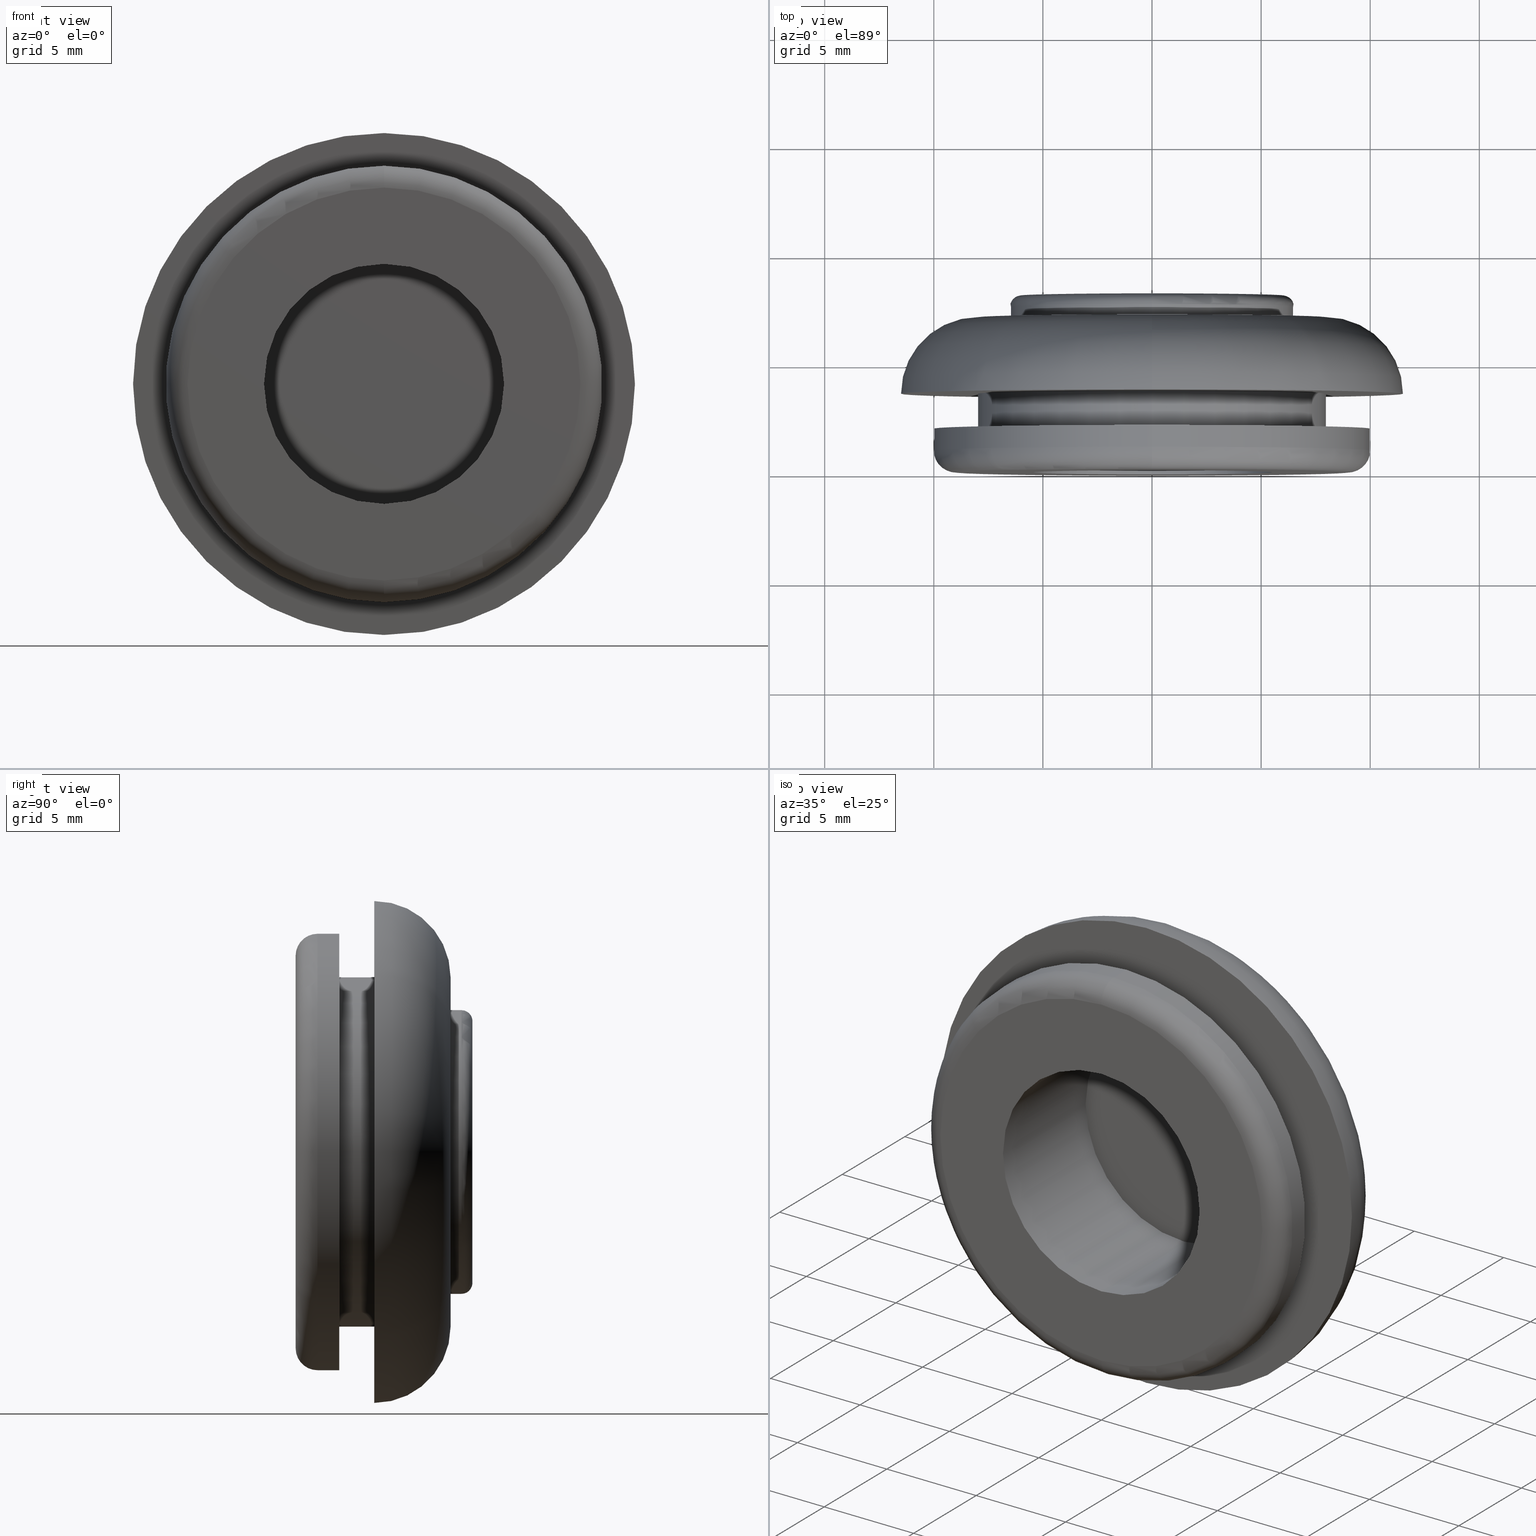
[diagram: canonical four-view strip — front | top / right | iso, engineering-drawing reading convention]
A machine part, canonical four-view strip (front | top / right | iso — engineering-drawing reading convention). The complete STEP part file that produces these views, byte-faithful:
ISO-10303-21;
HEADER;
FILE_DESCRIPTION (( 'STEP AP214' ),
    '1' );
FILE_NAME ('TM_MG_1_F.STEP',
    '2017-02-14T02:38:15',
    ( '' ),
    ( '' ),
    'SwSTEP 2.0',
    'SolidWorks 2015',
    '' );
FILE_SCHEMA (( 'AUTOMOTIVE_DESIGN' ));
ENDSEC;

DATA;
#1 = VERTEX_POINT ( 'NONE', #2 ) ;
#2 = CARTESIAN_POINT ( 'NONE',  ( 0.0000000000000000000, 1.000000000000000000, -10.00000000000000000 ) ) ;
#3 = DIRECTION ( 'NONE',  ( 0.0000000000000000000, -1.000000000000000000, 0.0000000000000000000 ) ) ;
#4 = CIRCLE ( 'NONE', #153, 6.500000000000000000 ) ;
#5 = ORIENTED_EDGE ( 'NONE', *, *, #287, .T. ) ;
#6 = AXIS2_PLACEMENT_3D ( 'NONE', #288, #584, #237 ) ;
#7 = PRODUCT_DEFINITION_CONTEXT ( 'detailed design', #92, 'design' ) ;
#8 = TOROIDAL_SURFACE ( 'NONE', #317, 9.000000000000000000, 1.000000000000000000 ) ;
#9 = CIRCLE ( 'NONE', #593, 5.500000000000000000 ) ;
#10 = ORIENTED_EDGE ( 'NONE', *, *, #227, .F. ) ;
#11 = AXIS2_PLACEMENT_3D ( 'NONE', #476, #622, #591 ) ;
#12 = EDGE_CURVE ( 'NONE', #91, #156, #4, .T. ) ;
#13 = VERTEX_POINT ( 'NONE', #604 ) ;
#14 = ORIENTED_EDGE ( 'NONE', *, *, #86, .F. ) ;
#15 = FACE_BOUND ( 'NONE', #56, .T. ) ;
#16 = DIRECTION ( 'NONE',  ( 0.0000000000000000000, 0.0000000000000000000, -1.000000000000000000 ) ) ;
#17 = AXIS2_PLACEMENT_3D ( 'NONE', #545, #392, #440 ) ;
#18 = EDGE_CURVE ( 'NONE', #155, #552, #526, .T. ) ;
#19 = SURFACE_SIDE_STYLE ('',( #457 ) ) ;
#20 = CIRCLE ( 'NONE', #218, 6.500000000000000000 ) ;
#21 = DIRECTION ( 'NONE',  ( 0.0000000000000000000, -1.000000000000000000, 0.0000000000000000000 ) ) ;
#22 = VECTOR ( 'NONE', #595, 1000.000000000000000 ) ;
#23 = CARTESIAN_POINT ( 'NONE',  ( 0.0000000000000000000, 0.0000000000000000000, -8.000000000000000000 ) ) ;
#24 = CYLINDRICAL_SURFACE ( 'NONE', #495, 10.00000000000000000 ) ;
#25 = DIRECTION ( 'NONE',  ( 0.0000000000000000000, 0.0000000000000000000, -1.000000000000000000 ) ) ;
#26 = CARTESIAN_POINT ( 'NONE',  ( 1.408343819019456400E-015, 3.600000000000000100, 11.50000000000000000 ) ) ;
#27 = PRODUCT_CONTEXT ( 'NONE', #496, 'mechanical' ) ;
#28 = DIRECTION ( 'NONE',  ( 0.0000000000000000000, 0.0000000000000000000, 1.000000000000000000 ) ) ;
#29 = CARTESIAN_POINT ( 'NONE',  ( 0.0000000000000000000, 6.599999999999999600, -3.061515884555945100E-016 ) ) ;
#30 =( NAMED_UNIT ( * ) PLANE_ANGLE_UNIT ( ) SI_UNIT ( $, .RADIAN. ) );
#31 = DIRECTION ( 'NONE',  ( 0.0000000000000000000, -1.000000000000000000, 0.0000000000000000000 ) ) ;
#32 = DIRECTION ( 'NONE',  ( 0.0000000000000000000, -1.000000000000000000, 0.0000000000000000000 ) ) ;
#33 = AXIS2_PLACEMENT_3D ( 'NONE', #308, #418, #460 ) ;
#34 =( LENGTH_UNIT ( ) NAMED_UNIT ( * ) SI_UNIT ( .MILLI., .METRE. ) );
#35 =( NAMED_UNIT ( * ) SI_UNIT ( $, .STERADIAN. ) SOLID_ANGLE_UNIT ( ) );
#36 = CARTESIAN_POINT ( 'NONE',  ( 0.0000000000000000000, 6.599999999999999600, -3.061515884555945100E-016 ) ) ;
#37 = CARTESIAN_POINT ( 'NONE',  ( 0.0000000000000000000, 7.100000000000000500, -3.061515884555945100E-016 ) ) ;
#38 = DIRECTION ( 'NONE',  ( -1.224646799147353500E-016, 0.0000000000000000000, -1.000000000000000000 ) ) ;
#39 = CARTESIAN_POINT ( 'NONE',  ( 0.0000000000000000000, 3.600000000000000100, -8.000000000000000000 ) ) ;
#40 = CYLINDRICAL_SURFACE ( 'NONE', #75, 5.500000000000000000 ) ;
#41 = EDGE_LOOP ( 'NONE', ( #350, #119, #254, #433 ) ) ;
#42 = CIRCLE ( 'NONE', #404, 5.500000000000000000 ) ;
#43 = AXIS2_PLACEMENT_3D ( 'NONE', #462, #544, #57 ) ;
#44 = ORIENTED_EDGE ( 'NONE', *, *, #265, .F. ) ;
#45 = VERTEX_POINT ( 'NONE', #150 ) ;
#46 = CARTESIAN_POINT ( 'NONE',  ( 0.0000000000000000000, 0.0000000000000000000, -6.500000000000000000 ) ) ;
#47 = AXIS2_PLACEMENT_3D ( 'NONE', #244, #594, #298 ) ;
#48 = ADVANCED_FACE ( 'NONE', ( #315 ), #344, .T. ) ;
#49 = EDGE_CURVE ( 'NONE', #497, #312, #546, .T. ) ;
#50 = PLANE ( 'NONE',  #246 ) ;
#51 = CARTESIAN_POINT ( 'NONE',  ( 1.102182119232617700E-015, 1.000000000000000000, 9.000000000000000000 ) ) ;
#52 = ORIENTED_EDGE ( 'NONE', *, *, #18, .T. ) ;
#53 = DIRECTION ( 'NONE',  ( 0.0000000000000000000, 0.0000000000000000000, -1.000000000000000000 ) ) ;
#54 = AXIS2_PLACEMENT_3D ( 'NONE', #129, #480, #71 ) ;
#55 = EDGE_CURVE ( 'NONE', #611, #365, #20, .T. ) ;
#56 = EDGE_LOOP ( 'NONE', ( #207, #652 ) ) ;
#57 = DIRECTION ( 'NONE',  ( 0.0000000000000000000, 0.0000000000000000000, -1.000000000000000000 ) ) ;
#58 = ORIENTED_EDGE ( 'NONE', *, *, #597, .F. ) ;
#59 = TOROIDAL_SURFACE ( 'NONE', #11, 8.000000000000000000, 3.500000000000000000 ) ;
#60 = ORIENTED_EDGE ( 'NONE', *, *, #502, .T. ) ;
#61 = FACE_OUTER_BOUND ( 'NONE', #529, .T. ) ;
#62 = CARTESIAN_POINT ( 'NONE',  ( 0.0000000000000000000, -1.010300241903460100E-015, -3.061515884555945100E-016 ) ) ;
#63 = VERTEX_POINT ( 'NONE', #631 ) ;
#64 = LINE ( 'NONE', #333, #185 ) ;
#65 = DIRECTION ( 'NONE',  ( 0.0000000000000000000, 0.0000000000000000000, -1.000000000000000000 ) ) ;
#66 = ORIENTED_EDGE ( 'NONE', *, *, #86, .T. ) ;
#67 = AXIS2_PLACEMENT_3D ( 'NONE', #231, #130, #171 ) ;
#68 = EDGE_CURVE ( 'NONE', #166, #156, #274, .T. ) ;
#69 =( GEOMETRIC_REPRESENTATION_CONTEXT ( 3 ) GLOBAL_UNCERTAINTY_ASSIGNED_CONTEXT ( ( #519 ) ) GLOBAL_UNIT_ASSIGNED_CONTEXT ( ( #335, #199, #35 ) ) REPRESENTATION_CONTEXT ( 'NONE', 'WORKASPACE' ) );
#70 = CARTESIAN_POINT ( 'NONE',  ( 0.0000000000000000000, 3.600000000000000100, -3.061515884555945100E-016 ) ) ;
#71 = DIRECTION ( 'NONE',  ( 0.0000000000000000000, 0.0000000000000000000, -1.000000000000000000 ) ) ;
#72 = FILL_AREA_STYLE ('',( #330 ) ) ;
#73 = DIRECTION ( 'NONE',  ( 0.0000000000000000000, -1.000000000000000000, 0.0000000000000000000 ) ) ;
#74 = EDGE_LOOP ( 'NONE', ( #58, #186, #253, #474 ) ) ;
#75 = AXIS2_PLACEMENT_3D ( 'NONE', #486, #492, #294 ) ;
#76 = PRESENTATION_STYLE_ASSIGNMENT (( #562 ) ) ;
#77 = LINE ( 'NONE', #547, #194 ) ;
#78 = DIRECTION ( 'NONE',  ( -1.000000000000000000, -0.0000000000000000000, -0.0000000000000000000 ) ) ;
#79 = EDGE_CURVE ( 'NONE', #45, #448, #154, .T. ) ;
#80 = CARTESIAN_POINT ( 'NONE',  ( 0.0000000000000000000, 0.0000000000000000000, -3.061515884555945100E-016 ) ) ;
#81 = DIRECTION ( 'NONE',  ( 0.0000000000000000000, 0.0000000000000000000, -1.000000000000000000 ) ) ;
#82 = TOROIDAL_SURFACE ( 'NONE', #428, 8.000000000000000000, 3.500000000000000000 ) ;
#83 = CARTESIAN_POINT ( 'NONE',  ( 0.0000000000000000000, 7.599999999999999600, -6.500000000000000900 ) ) ;
#84 = DIRECTION ( 'NONE',  ( 0.0000000000000000000, 0.0000000000000000000, -1.000000000000000000 ) ) ;
#85 = AXIS2_PLACEMENT_3D ( 'NONE', #80, #31, #16 ) ;
#86 = EDGE_CURVE ( 'NONE', #88, #63, #425, .T. ) ;
#87 = LINE ( 'NONE', #389, #475 ) ;
#88 = VERTEX_POINT ( 'NONE', #256 ) ;
#89 = CARTESIAN_POINT ( 'NONE',  ( 9.797174393178825700E-016, 3.600000000000000100, 8.000000000000000000 ) ) ;
#90 = EDGE_LOOP ( 'NONE', ( #558, #128 ) ) ;
#91 = VERTEX_POINT ( 'NONE', #617 ) ;
#92 = APPLICATION_CONTEXT ( 'automotive_design' ) ;
#93 = DIRECTION ( 'NONE',  ( 0.0000000000000000000, -1.000000000000000000, 0.0000000000000000000 ) ) ;
#94 = PRODUCT_DEFINITION_CONTEXT ( 'detailed design', #233, 'design' ) ;
#95 = CIRCLE ( 'NONE', #307, 10.00000000000000000 ) ;
#96 = ORIENTED_EDGE ( 'NONE', *, *, #489, .T. ) ;
#97 = ADVANCED_FACE ( 'NONE', ( #555 ), #82, .T. ) ;
#98 = DIRECTION ( 'NONE',  ( 0.0000000000000000000, -1.000000000000000000, 0.0000000000000000000 ) ) ;
#99 = ADVANCED_BREP_SHAPE_REPRESENTATION ( '', ( #336, #422 ), #360 ) ;
#100 = DIRECTION ( 'NONE',  ( 0.0000000000000000000, -1.000000000000000000, 0.0000000000000000000 ) ) ;
#101 = ADVANCED_FACE ( 'NONE', ( #565 ), #24, .T. ) ;
#102 = CARTESIAN_POINT ( 'NONE',  ( 0.0000000000000000000, 7.100000000000000500, 8.881784197001250400E-016 ) ) ;
#103 = ORIENTED_EDGE ( 'NONE', *, *, #624, .T. ) ;
#104 = DIRECTION ( 'NONE',  ( 0.0000000000000000000, -1.000000000000000000, 0.0000000000000000000 ) ) ;
#105 = VECTOR ( 'NONE', #525, 1000.000000000000000 ) ;
#106 = ORIENTED_EDGE ( 'NONE', *, *, #319, .T. ) ;
#107 = CARTESIAN_POINT ( 'NONE',  ( 0.0000000000000000000, 7.599999999999999600, -3.061515884555945100E-016 ) ) ;
#108 = VERTEX_POINT ( 'NONE', #560 ) ;
#109 = AXIS2_PLACEMENT_3D ( 'NONE', #222, #78, #390 ) ;
#110 = AXIS2_PLACEMENT_3D ( 'NONE', #487, #554, #441 ) ;
#111 = ORIENTED_EDGE ( 'NONE', *, *, #543, .T. ) ;
#112 = CIRCLE ( 'NONE', #162, 11.50000000000000000 ) ;
#113 = ORIENTED_EDGE ( 'NONE', *, *, #634, .F. ) ;
#114 = AXIS2_PLACEMENT_3D ( 'NONE', #408, #93, #453 ) ;
#115 = EDGE_CURVE ( 'NONE', #312, #649, #158, .T. ) ;
#116 = EDGE_LOOP ( 'NONE', ( #629, #60 ) ) ;
#117 = PRODUCT ( 'TM_MG_1_F', 'TM_MG_1_F', '', ( #27 ) ) ;
#118 = CIRCLE ( 'NONE', #321, 8.000000000000000000 ) ;
#119 = ORIENTED_EDGE ( 'NONE', *, *, #505, .T. ) ;
#120 = DIRECTION ( 'NONE',  ( 0.0000000000000000000, -1.000000000000000000, 0.0000000000000000000 ) ) ;
#121 = AXIS2_PLACEMENT_3D ( 'NONE', #531, #432, #125 ) ;
#122 = EDGE_CURVE ( 'NONE', #570, #166, #42, .T. ) ;
#123 = DIRECTION ( 'NONE',  ( 0.0000000000000000000, -1.000000000000000000, 0.0000000000000000000 ) ) ;
#124 = DIRECTION ( 'NONE',  ( 0.0000000000000000000, -1.000000000000000000, 0.0000000000000000000 ) ) ;
#125 = DIRECTION ( 'NONE',  ( 0.0000000000000000000, 0.0000000000000000000, -1.000000000000000000 ) ) ;
#126 = CIRCLE ( 'NONE', #6, 5.500000000000000000 ) ;
#127 = EDGE_CURVE ( 'NONE', #1, #272, #297, .T. ) ;
#128 = ORIENTED_EDGE ( 'NONE', *, *, #573, .F. ) ;
#129 = CARTESIAN_POINT ( 'NONE',  ( 0.0000000000000000000, -1.665334536937735000E-015, -3.061515884555945100E-016 ) ) ;
#130 = DIRECTION ( 'NONE',  ( -1.000000000000000000, -0.0000000000000000000, -0.0000000000000000000 ) ) ;
#131 = DIRECTION ( 'NONE',  ( 0.0000000000000000000, 0.0000000000000000000, -1.000000000000000000 ) ) ;
#132 = DIRECTION ( 'NONE',  ( 0.0000000000000000000, 1.000000000000000000, 0.0000000000000000000 ) ) ;
#133 = ORIENTED_EDGE ( 'NONE', *, *, #468, .T. ) ;
#134 = SHAPE_DEFINITION_REPRESENTATION ( #144, #386 ) ;
#135 = DIRECTION ( 'NONE',  ( 0.0000000000000000000, 0.0000000000000000000, 1.000000000000000000 ) ) ;
#136 = CIRCLE ( 'NONE', #54, 9.000000000000000000 ) ;
#137 = ADVANCED_FACE ( 'NONE', ( #420 ), #146, .F. ) ;
#138 = DIRECTION ( 'NONE',  ( 0.0000000000000000000, 0.0000000000000000000, -1.000000000000000000 ) ) ;
#139 = DIRECTION ( 'NONE',  ( 0.0000000000000000000, 0.0000000000000000000, -1.000000000000000000 ) ) ;
#140 = AXIS2_PLACEMENT_3D ( 'NONE', #399, #504, #81 ) ;
#141 = LINE ( 'NONE', #643, #431 ) ;
#142 = PRODUCT_DEFINITION ( 'UNKNOWN', '', #314, #94 ) ;
#143 = DIRECTION ( 'NONE',  ( 0.0000000000000000000, -1.000000000000000000, 0.0000000000000000000 ) ) ;
#144 = PRODUCT_DEFINITION_SHAPE ( 'NONE', 'NONE',  #142 ) ;
#145 = AXIS2_PLACEMENT_3D ( 'NONE', #309, #3, #245 ) ;
#146 = PLANE ( 'NONE',  #615 ) ;
#147 = EDGE_CURVE ( 'NONE', #382, #272, #141, .T. ) ;
#148 = ADVANCED_FACE ( 'NONE', ( #551 ), #264, .T. ) ;
#149 = CARTESIAN_POINT ( 'NONE',  ( 0.0000000000000000000, 7.599999999999999600, -6.000000000000000000 ) ) ;
#150 = CARTESIAN_POINT ( 'NONE',  ( 1.194030629168669500E-015, 7.100000000000000500, 8.000000000000000000 ) ) ;
#151 =( NAMED_UNIT ( * ) PLANE_ANGLE_UNIT ( ) SI_UNIT ( $, .RADIAN. ) );
#152 = CARTESIAN_POINT ( 'NONE',  ( 0.0000000000000000000, 2.000000000000000000, -10.00000000000000000 ) ) ;
#153 = AXIS2_PLACEMENT_3D ( 'NONE', #107, #259, #509 ) ;
#154 = CIRCLE ( 'NONE', #322, 8.000000000000000000 ) ;
#155 = VERTEX_POINT ( 'NONE', #490 ) ;
#156 = VERTEX_POINT ( 'NONE', #83 ) ;
#157 = CYLINDRICAL_SURFACE ( 'NONE', #213, 5.500000000000000000 ) ;
#158 = CIRCLE ( 'NONE', #465, 8.000000000000000000 ) ;
#159 = EDGE_LOOP ( 'NONE', ( #513, #539, #219, #10 ) ) ;
#160 = EDGE_CURVE ( 'NONE', #166, #570, #126, .T. ) ;
#161 = ORIENTED_EDGE ( 'NONE', *, *, #502, .F. ) ;
#162 = AXIS2_PLACEMENT_3D ( 'NONE', #70, #385, #25 ) ;
#163 = SHAPE_REPRESENTATION ( 'TM_MG_1_F', ( #110, #33 ), #69 ) ;
#164 = DIRECTION ( 'NONE',  ( 0.0000000000000000000, -1.000000000000000000, 0.0000000000000000000 ) ) ;
#165 = DIRECTION ( 'NONE',  ( 0.0000000000000000000, -1.000000000000000000, 0.0000000000000000000 ) ) ;
#166 = VERTEX_POINT ( 'NONE', #181 ) ;
#167 = DIRECTION ( 'NONE',  ( 0.0000000000000000000, 0.0000000000000000000, -1.000000000000000000 ) ) ;
#168 = CIRCLE ( 'NONE', #114, 8.000000000000000000 ) ;
#169 = CARTESIAN_POINT ( 'NONE',  ( 0.0000000000000000000, 7.599999999999999600, -3.061515884555945100E-016 ) ) ;
#170 = EDGE_LOOP ( 'NONE', ( #295, #224, #201, #483 ) ) ;
#171 = DIRECTION ( 'NONE',  ( 0.0000000000000000000, 0.0000000000000000000, 1.000000000000000000 ) ) ;
#172 = DIRECTION ( 'NONE',  ( 0.0000000000000000000, 0.0000000000000000000, -1.000000000000000000 ) ) ;
#173 = DIRECTION ( 'NONE',  ( 0.0000000000000000000, -1.000000000000000000, 0.0000000000000000000 ) ) ;
#174 = CARTESIAN_POINT ( 'NONE',  ( 7.960204194457795500E-016, 7.100000000000000500, 6.500000000000000000 ) ) ;
#175 = SURFACE_SIDE_STYLE ('',( #211 ) ) ;
#176 = APPLICATION_PROTOCOL_DEFINITION ( 'draft international standard', 'automotive_design', 1998, #187 ) ;
#177 = DIRECTION ( 'NONE',  ( 0.0000000000000000000, -1.000000000000000000, 0.0000000000000000000 ) ) ;
#178 = EDGE_CURVE ( 'NONE', #63, #88, #9, .T. ) ;
#179 = DIRECTION ( 'NONE',  ( -1.224646799147353500E-016, 0.0000000000000000000, -1.000000000000000000 ) ) ;
#180 = ADVANCED_FACE ( 'NONE', ( #278 ), #387, .T. ) ;
#181 = CARTESIAN_POINT ( 'NONE',  ( 0.0000000000000000000, 7.599999999999999600, -5.500000000000000000 ) ) ;
#182 = DIRECTION ( 'NONE',  ( 0.0000000000000000000, 0.0000000000000000000, 1.000000000000000000 ) ) ;
#183 = AXIS2_PLACEMENT_3D ( 'NONE', #169, #528, #221 ) ;
#184 = AXIS2_PLACEMENT_3D ( 'NONE', #36, #445, #303 ) ;
#185 = VECTOR ( 'NONE', #438, 1000.000000000000000 ) ;
#186 = ORIENTED_EDGE ( 'NONE', *, *, #18, .F. ) ;
#187 = APPLICATION_CONTEXT ( 'automotive_design' ) ;
#188 = EDGE_LOOP ( 'NONE', ( #103, #451, #401, #316 ) ) ;
#189 = CARTESIAN_POINT ( 'NONE',  ( 0.0000000000000000000, 7.100000000000000500, 6.500000000000000000 ) ) ;
#190 = EDGE_CURVE ( 'NONE', #448, #108, #516, .T. ) ;
#191 = EDGE_LOOP ( 'NONE', ( #452, #636, #488, #518 ) ) ;
#192 = EDGE_CURVE ( 'NONE', #1, #225, #410, .T. ) ;
#193 = DIRECTION ( 'NONE',  ( 0.0000000000000000000, 0.0000000000000000000, 1.000000000000000000 ) ) ;
#194 = VECTOR ( 'NONE', #380, 1000.000000000000000 ) ;
#195 = ADVANCED_FACE ( 'NONE', ( #641 ), #50, .F. ) ;
#196 = CARTESIAN_POINT ( 'NONE',  ( 0.0000000000000000000, -1.010300241903460100E-015, -3.061515884555945100E-016 ) ) ;
#197 = AXIS2_PLACEMENT_3D ( 'NONE', #196, #100, #361 ) ;
#198 = CARTESIAN_POINT ( 'NONE',  ( 1.224646799147353300E-015, 1.000000000000000000, 10.00000000000000000 ) ) ;
#199 =( NAMED_UNIT ( * ) PLANE_ANGLE_UNIT ( ) SI_UNIT ( $, .RADIAN. ) );
#200 = EDGE_LOOP ( 'NONE', ( #310, #106, #66, #467 ) ) ;
#201 = ORIENTED_EDGE ( 'NONE', *, *, #437, .T. ) ;
#202 = DIRECTION ( 'NONE',  ( 0.0000000000000000000, 0.0000000000000000000, -1.000000000000000000 ) ) ;
#203 = DIRECTION ( 'NONE',  ( 1.000000000000000000, 0.0000000000000000000, 0.0000000000000000000 ) ) ;
#204 = CARTESIAN_POINT ( 'NONE',  ( 0.0000000000000000000, 1.000000000000000000, 0.0000000000000000000 ) ) ;
#205 = CIRCLE ( 'NONE', #47, 10.00000000000000000 ) ;
#206 = ORIENTED_EDGE ( 'NONE', *, *, #147, .T. ) ;
#207 = ORIENTED_EDGE ( 'NONE', *, *, #374, .T. ) ;
#208 = AXIS2_PLACEMENT_3D ( 'NONE', #284, #226, #533 ) ;
#209 = PRODUCT_DEFINITION ( 'UNKNOWN', '', #247, #7 ) ;
#210 = ORIENTED_EDGE ( 'NONE', *, *, #265, .T. ) ;
#211 = SURFACE_STYLE_FILL_AREA ( #72 ) ;
#212 = COLOUR_RGB ( '',0.7921568627450980000, 0.8196078431372548800, 0.9333333333333333500 ) ;
#213 = AXIS2_PLACEMENT_3D ( 'NONE', #549, #638, #139 ) ;
#214 = EDGE_CURVE ( 'NONE', #614, #382, #532, .T. ) ;
#215 = CARTESIAN_POINT ( 'NONE',  ( 0.0000000000000000000, 0.0000000000000000000, -3.061515884555945100E-016 ) ) ;
#216 = LINE ( 'NONE', #238, #491 ) ;
#217 = AXIS2_PLACEMENT_3D ( 'NONE', #223, #280, #172 ) ;
#218 = AXIS2_PLACEMENT_3D ( 'NONE', #220, #583, #167 ) ;
#219 = ORIENTED_EDGE ( 'NONE', *, *, #190, .T. ) ;
#220 = CARTESIAN_POINT ( 'NONE',  ( 0.0000000000000000000, 7.100000000000000500, -3.061515884555945100E-016 ) ) ;
#221 = DIRECTION ( 'NONE',  ( 0.0000000000000000000, 0.0000000000000000000, -1.000000000000000000 ) ) ;
#222 = CARTESIAN_POINT ( 'NONE',  ( 0.0000000000000000000, 3.600000000000000100, -8.000000000000000000 ) ) ;
#223 = CARTESIAN_POINT ( 'NONE',  ( 0.0000000000000000000, 0.0000000000000000000, -3.061515884555945100E-016 ) ) ;
#224 = ORIENTED_EDGE ( 'NONE', *, *, #573, .T. ) ;
#225 = VERTEX_POINT ( 'NONE', #240 ) ;
#226 = DIRECTION ( 'NONE',  ( 0.0000000000000000000, -1.000000000000000000, 0.0000000000000000000 ) ) ;
#227 = EDGE_CURVE ( 'NONE', #376, #108, #112, .T. ) ;
#228 = CARTESIAN_POINT ( 'NONE',  ( 7.347880794884119700E-016, 7.599999999999999600, 6.000000000000000000 ) ) ;
#229 = FACE_OUTER_BOUND ( 'NONE', #200, .T. ) ;
#230 = EDGE_LOOP ( 'NONE', ( #506, #206, #602, #524 ) ) ;
#231 = CARTESIAN_POINT ( 'NONE',  ( 0.0000000000000000000, 1.000000000000000000, -9.000000000000000000 ) ) ;
#232 = CARTESIAN_POINT ( 'NONE',  ( 0.0000000000000000000, -1.337817389420598000E-015, 9.000000000000000000 ) ) ;
#233 = APPLICATION_CONTEXT ( 'automotive_design' ) ;
#234 = PLANE ( 'NONE',  #17 ) ;
#235 = APPLICATION_PROTOCOL_DEFINITION ( 'draft international standard', 'automotive_design', 1998, #92 ) ;
#236 = AXIS2_PLACEMENT_3D ( 'NONE', #338, #435, #515 ) ;
#237 = DIRECTION ( 'NONE',  ( 0.0000000000000000000, 0.0000000000000000000, -1.000000000000000000 ) ) ;
#238 = CARTESIAN_POINT ( 'NONE',  ( 0.0000000000000000000, 0.0000000000000000000, -10.00000000000000000 ) ) ;
#239 = CYLINDRICAL_SURFACE ( 'NONE', #291, 8.000000000000000000 ) ;
#240 = CARTESIAN_POINT ( 'NONE',  ( 0.0000000000000000000, -1.665334536937735000E-015, -9.000000000000000000 ) ) ;
#241 = PLANE ( 'NONE',  #471 ) ;
#242 = EDGE_LOOP ( 'NONE', ( #366, #608, #588, #501 ) ) ;
#243 = VERTEX_POINT ( 'NONE', #535 ) ;
#244 = CARTESIAN_POINT ( 'NONE',  ( 0.0000000000000000000, 2.000000000000000000, -3.061515884555945100E-016 ) ) ;
#245 = DIRECTION ( 'NONE',  ( 0.0000000000000000000, 0.0000000000000000000, -1.000000000000000000 ) ) ;
#246 = AXIS2_PLACEMENT_3D ( 'NONE', #623, #279, #28 ) ;
#247 = PRODUCT_DEFINITION_FORMATION_WITH_SPECIFIED_SOURCE ( 'ANY', '', #117, .NOT_KNOWN. ) ;
#248 = CIRCLE ( 'NONE', #268, 11.50000000000000000 ) ;
#249 = ADVANCED_FACE ( 'NONE', ( #621 ), #500, .T. ) ;
#250 = AXIS2_PLACEMENT_3D ( 'NONE', #189, #642, #355 ) ;
#251 = DIRECTION ( 'NONE',  ( 0.0000000000000000000, 0.0000000000000000000, -1.000000000000000000 ) ) ;
#252 = EDGE_CURVE ( 'NONE', #243, #13, #373, .T. ) ;
#253 = ORIENTED_EDGE ( 'NONE', *, *, #332, .T. ) ;
#254 = ORIENTED_EDGE ( 'NONE', *, *, #411, .F. ) ;
#255 = CONTEXT_DEPENDENT_SHAPE_REPRESENTATION ( #439, #384 ) ;
#256 = CARTESIAN_POINT ( 'NONE',  ( 6.735557395310442000E-016, 7.100000000000000500, 5.500000000000000000 ) ) ;
#257 = CIRCLE ( 'NONE', #183, 6.500000000000000000 ) ;
#258 = ORIENTED_EDGE ( 'NONE', *, *, #178, .F. ) ;
#259 = DIRECTION ( 'NONE',  ( 0.0000000000000000000, -1.000000000000000000, 0.0000000000000000000 ) ) ;
#260 =( LENGTH_UNIT ( ) NAMED_UNIT ( * ) SI_UNIT ( .MILLI., .METRE. ) );
#261 = AXIS2_PLACEMENT_3D ( 'NONE', #62, #21, #383 ) ;
#262 = AXIS2_PLACEMENT_3D ( 'NONE', #514, #415, #251 ) ;
#263 = TOROIDAL_SURFACE ( 'NONE', #391, 6.000000000000000000, 0.5000000000000000000 ) ;
#264 = CYLINDRICAL_SURFACE ( 'NONE', #43, 8.000000000000000000 ) ;
#265 = EDGE_CURVE ( 'NONE', #108, #376, #248, .T. ) ;
#266 = VECTOR ( 'NONE', #541, 1000.000000000000000 ) ;
#267 = EDGE_LOOP ( 'NONE', ( #133, #493, #44, #421 ) ) ;
#268 = AXIS2_PLACEMENT_3D ( 'NONE', #436, #73, #578 ) ;
#269 = SHAPE_DEFINITION_REPRESENTATION ( #293, #163 ) ;
#270 = CIRCLE ( 'NONE', #633, 8.000000000000000000 ) ;
#271 = EDGE_LOOP ( 'NONE', ( #371, #609 ) ) ;
#272 = VERTEX_POINT ( 'NONE', #198 ) ;
#273 = DIRECTION ( 'NONE',  ( 0.0000000000000000000, -1.000000000000000000, 0.0000000000000000000 ) ) ;
#274 = CIRCLE ( 'NONE', #292, 0.5000000000000004400 ) ;
#275 = VERTEX_POINT ( 'NONE', #305 ) ;
#276 = CARTESIAN_POINT ( 'NONE',  ( 0.0000000000000000000, 0.0000000000000000000, -3.061515884555945100E-016 ) ) ;
#277 = CIRCLE ( 'NONE', #145, 8.000000000000000000 ) ;
#278 = FACE_OUTER_BOUND ( 'NONE', #469, .T. ) ;
#279 = DIRECTION ( 'NONE',  ( 0.0000000000000000000, 1.000000000000000000, 0.0000000000000000000 ) ) ;
#280 = DIRECTION ( 'NONE',  ( 0.0000000000000000000, -1.000000000000000000, 0.0000000000000000000 ) ) ;
#281 = DIRECTION ( 'NONE',  ( 0.0000000000000000000, -1.000000000000000000, 0.0000000000000000000 ) ) ;
#282 = PRODUCT_RELATED_PRODUCT_CATEGORY ( 'part', '', ( #117 ) ) ;
#283 = ORIENTED_EDGE ( 'NONE', *, *, #603, .F. ) ;
#284 = CARTESIAN_POINT ( 'NONE',  ( 0.0000000000000000000, 2.000000000000000000, -3.061515884555945100E-016 ) ) ;
#285 = DIRECTION ( 'NONE',  ( -1.224646799147351500E-016, 0.0000000000000000000, -1.000000000000000000 ) ) ;
#286 = AXIS2_PLACEMENT_3D ( 'NONE', #51, #646, #179 ) ;
#287 = EDGE_CURVE ( 'NONE', #272, #1, #95, .T. ) ;
#288 = CARTESIAN_POINT ( 'NONE',  ( 0.0000000000000000000, 7.599999999999999600, -3.061515884555945100E-016 ) ) ;
#289 = DIRECTION ( 'NONE',  ( 0.0000000000000000000, -1.000000000000000000, 0.0000000000000000000 ) ) ;
#290 = CARTESIAN_POINT ( 'NONE',  ( 9.797174393178825700E-016, 2.000000000000000000, 8.000000000000000000 ) ) ;
#291 = AXIS2_PLACEMENT_3D ( 'NONE', #276, #327, #616 ) ;
#292 = AXIS2_PLACEMENT_3D ( 'NONE', #149, #413, #193 ) ;
#293 = PRODUCT_DEFINITION_SHAPE ( 'NONE', 'NONE',  #209 ) ;
#294 = DIRECTION ( 'NONE',  ( 0.0000000000000000000, 0.0000000000000000000, -1.000000000000000000 ) ) ;
#295 = ORIENTED_EDGE ( 'NONE', *, *, #49, .F. ) ;
#296 = FACE_OUTER_BOUND ( 'NONE', #613, .T. ) ;
#297 = CIRCLE ( 'NONE', #527, 10.00000000000000000 ) ;
#298 = DIRECTION ( 'NONE',  ( 0.0000000000000000000, 0.0000000000000000000, -1.000000000000000000 ) ) ;
#299 = EDGE_LOOP ( 'NONE', ( #576, #577, #111, #324 ) ) ;
#300 = ORIENTED_EDGE ( 'NONE', *, *, #252, .F. ) ;
#301 = PLANE ( 'NONE',  #250 ) ;
#302 = EDGE_CURVE ( 'NONE', #45, #376, #610, .T. ) ;
#303 = DIRECTION ( 'NONE',  ( 0.0000000000000000000, 0.0000000000000000000, -1.000000000000000000 ) ) ;
#304 = ADVANCED_FACE ( 'NONE', ( #229 ), #596, .F. ) ;
#305 = CARTESIAN_POINT ( 'NONE',  ( 1.163414459189985300E-015, -1.665334536937735000E-015, 9.000000000000000000 ) ) ;
#306 = ADVANCED_FACE ( 'NONE', ( #482, #470 ), #241, .F. ) ;
#307 = AXIS2_PLACEMENT_3D ( 'NONE', #574, #273, #472 ) ;
#308 = CARTESIAN_POINT ( 'NONE',  ( 0.0000000000000000000, 0.0000000000000000000, 0.0000000000000000000 ) ) ;
#309 = CARTESIAN_POINT ( 'NONE',  ( 0.0000000000000000000, 3.600000000000000100, -3.061515884555945100E-016 ) ) ;
#310 = ORIENTED_EDGE ( 'NONE', *, *, #122, .F. ) ;
#311 = FACE_OUTER_BOUND ( 'NONE', #299, .T. ) ;
#312 = VERTEX_POINT ( 'NONE', #290 ) ;
#313 = EDGE_LOOP ( 'NONE', ( #300, #481 ) ) ;
#314 = PRODUCT_DEFINITION_FORMATION_WITH_SPECIFIED_SOURCE ( 'ANY', '', #443, .NOT_KNOWN. ) ;
#315 = FACE_OUTER_BOUND ( 'NONE', #592, .T. ) ;
#316 = ORIENTED_EDGE ( 'NONE', *, *, #437, .F. ) ;
#317 = AXIS2_PLACEMENT_3D ( 'NONE', #204, #607, #600 ) ;
#318 = PRESENTATION_STYLE_ASSIGNMENT (( #523 ) ) ;
#319 = EDGE_CURVE ( 'NONE', #570, #88, #77, .T. ) ;
#320 = CARTESIAN_POINT ( 'NONE',  ( 6.735557395310442000E-016, 7.599999999999999600, 5.500000000000000000 ) ) ;
#321 = AXIS2_PLACEMENT_3D ( 'NONE', #37, #400, #84 ) ;
#322 = AXIS2_PLACEMENT_3D ( 'NONE', #478, #331, #345 ) ;
#323 = VECTOR ( 'NONE', #143, 1000.000000000000000 ) ;
#324 = ORIENTED_EDGE ( 'NONE', *, *, #178, .T. ) ;
#325 = CARTESIAN_POINT ( 'NONE',  ( 0.0000000000000000000, 3.600000000000000100, 0.0000000000000000000 ) ) ;
#326 = EDGE_LOOP ( 'NONE', ( #210, #521 ) ) ;
#327 = DIRECTION ( 'NONE',  ( 0.0000000000000000000, -1.000000000000000000, 0.0000000000000000000 ) ) ;
#328 = CARTESIAN_POINT ( 'NONE',  ( 0.0000000000000000000, 7.100000000000000500, -3.061515884555945100E-016 ) ) ;
#329 = DIRECTION ( 'NONE',  ( 0.0000000000000000000, -1.000000000000000000, 0.0000000000000000000 ) ) ;
#330 = FILL_AREA_STYLE_COLOUR ( '', #358 ) ;
#331 = DIRECTION ( 'NONE',  ( 0.0000000000000000000, -1.000000000000000000, 0.0000000000000000000 ) ) ;
#332 = EDGE_CURVE ( 'NONE', #155, #243, #337, .T. ) ;
#333 = CARTESIAN_POINT ( 'NONE',  ( 0.0000000000000000000, 0.0000000000000000000, -5.500000000000000000 ) ) ;
#334 = ORIENTED_EDGE ( 'NONE', *, *, #127, .T. ) ;
#335 =( LENGTH_UNIT ( ) NAMED_UNIT ( * ) SI_UNIT ( .MILLI., .METRE. ) );
#336 = MANIFOLD_SOLID_BREP ( '���߰�1', #484 ) ;
#337 = LINE ( 'NONE', #538, #359 ) ;
#338 = CARTESIAN_POINT ( 'NONE',  ( 0.0000000000000000000, 1.000000000000000000, 0.0000000000000000000 ) ) ;
#339 = CARTESIAN_POINT ( 'NONE',  ( 0.0000000000000000000, 0.0000000000000000000, -3.061515884555945100E-016 ) ) ;
#340 = DIRECTION ( 'NONE',  ( 0.0000000000000000000, 0.0000000000000000000, -1.000000000000000000 ) ) ;
#341 =( NAMED_UNIT ( * ) PLANE_ANGLE_UNIT ( ) SI_UNIT ( $, .RADIAN. ) );
#342 = CARTESIAN_POINT ( 'NONE',  ( 0.0000000000000000000, 0.0000000000000000000, 0.0000000000000000000 ) ) ;
#343 = AXIS2_PLACEMENT_3D ( 'NONE', #89, #402, #38 ) ;
#344 = TOROIDAL_SURFACE ( 'NONE', #262, 6.000000000000000000, 0.5000000000000000000 ) ;
#345 = DIRECTION ( 'NONE',  ( 0.0000000000000000000, 0.0000000000000000000, -1.000000000000000000 ) ) ;
#346 = VERTEX_POINT ( 'NONE', #39 ) ;
#347 = ORIENTED_EDGE ( 'NONE', *, *, #122, .T. ) ;
#348 = DIRECTION ( 'NONE',  ( 0.0000000000000000000, 0.0000000000000000000, -1.000000000000000000 ) ) ;
#349 = FACE_OUTER_BOUND ( 'NONE', #230, .T. ) ;
#350 = ORIENTED_EDGE ( 'NONE', *, *, #160, .T. ) ;
#351 = FILL_AREA_STYLE ('',( #405 ) ) ;
#352 = APPLICATION_PROTOCOL_DEFINITION ( 'draft international standard', 'automotive_design', 1998, #233 ) ;
#353 = ORIENTED_EDGE ( 'NONE', *, *, #411, .T. ) ;
#354 = PRODUCT_RELATED_PRODUCT_CATEGORY ( 'part', '', ( #443 ) ) ;
#355 = DIRECTION ( 'NONE',  ( 0.0000000000000000000, 0.0000000000000000000, -1.000000000000000000 ) ) ;
#356 = EDGE_LOOP ( 'NONE', ( #52, #395 ) ) ;
#357 = ADVANCED_FACE ( 'NONE', ( #61, #15 ), #234, .F. ) ;
#358 = COLOUR_RGB ( '',0.7921568627450980000, 0.8196078431372548800, 0.9333333333333333500 ) ;
#359 = VECTOR ( 'NONE', #165, 1000.000000000000000 ) ;
#360 =( GEOMETRIC_REPRESENTATION_CONTEXT ( 3 ) GLOBAL_UNCERTAINTY_ASSIGNED_CONTEXT ( ( #568 ) ) GLOBAL_UNIT_ASSIGNED_CONTEXT ( ( #620, #30, #406 ) ) REPRESENTATION_CONTEXT ( 'NONE', 'WORKASPACE' ) );
#361 = DIRECTION ( 'NONE',  ( 0.0000000000000000000, 0.0000000000000000000, -1.000000000000000000 ) ) ;
#362 = ADVANCED_FACE ( 'NONE', ( #582 ), #396, .T. ) ;
#363 = EDGE_CURVE ( 'NONE', #225, #275, #136, .T. ) ;
#364 = CARTESIAN_POINT ( 'NONE',  ( 0.0000000000000000000, 2.000000000000000000, -3.061515884555945100E-016 ) ) ;
#365 = VERTEX_POINT ( 'NONE', #174 ) ;
#366 = ORIENTED_EDGE ( 'NONE', *, *, #147, .F. ) ;
#367 = DIRECTION ( 'NONE',  ( 1.000000000000000000, 0.0000000000000000000, 0.0000000000000000000 ) ) ;
#368 = CIRCLE ( 'NONE', #403, 6.500000000000000000 ) ;
#369 = DIRECTION ( 'NONE',  ( 0.0000000000000000000, 0.0000000000000000000, -1.000000000000000000 ) ) ;
#370 = AXIS2_PLACEMENT_3D ( 'NONE', #232, #442, #135 ) ;
#371 = ORIENTED_EDGE ( 'NONE', *, *, #363, .T. ) ;
#372 = AXIS2_PLACEMENT_3D ( 'NONE', #328, #173, #579 ) ;
#373 = CIRCLE ( 'NONE', #197, 5.500000000000000000 ) ;
#374 = EDGE_CURVE ( 'NONE', #649, #312, #270, .T. ) ;
#375 = STYLED_ITEM ( 'NONE', ( #318 ), #336 ) ;
#376 = VERTEX_POINT ( 'NONE', #26 ) ;
#377 = EDGE_LOOP ( 'NONE', ( #353, #96, #548, #283 ) ) ;
#378 = CARTESIAN_POINT ( 'NONE',  ( 0.0000000000000000000, 7.100000000000000500, -8.000000000000000000 ) ) ;
#379 = CIRCLE ( 'NONE', #261, 5.500000000000000000 ) ;
#380 = DIRECTION ( 'NONE',  ( 0.0000000000000000000, -1.000000000000000000, 0.0000000000000000000 ) ) ;
#381 = ORIENTED_EDGE ( 'NONE', *, *, #68, .T. ) ;
#382 = VERTEX_POINT ( 'NONE', #426 ) ;
#383 = DIRECTION ( 'NONE',  ( 0.0000000000000000000, 0.0000000000000000000, -1.000000000000000000 ) ) ;
#384 = PRODUCT_DEFINITION_SHAPE ( 'NONE', 'NONE',  #653 ) ;
#385 = DIRECTION ( 'NONE',  ( 0.0000000000000000000, -1.000000000000000000, 0.0000000000000000000 ) ) ;
#386 = SHAPE_REPRESENTATION ( 'grommet', ( #422 ), #360 ) ;
#387 = CYLINDRICAL_SURFACE ( 'NONE', #140, 6.500000000000000000 ) ;
#388 = ORIENTED_EDGE ( 'NONE', *, *, #12, .T. ) ;
#389 = CARTESIAN_POINT ( 'NONE',  ( 7.960204194457795500E-016, 0.0000000000000000000, 6.500000000000000000 ) ) ;
#390 = DIRECTION ( 'NONE',  ( 0.0000000000000000000, 0.0000000000000000000, 1.000000000000000000 ) ) ;
#391 = AXIS2_PLACEMENT_3D ( 'NONE', #563, #281, #414 ) ;
#392 = DIRECTION ( 'NONE',  ( 0.0000000000000000000, -1.000000000000000000, 0.0000000000000000000 ) ) ;
#393 = CARTESIAN_POINT ( 'NONE',  ( 0.0000000000000000000, 7.100000000000000500, -3.061515884555945100E-016 ) ) ;
#394 = EDGE_CURVE ( 'NONE', #275, #225, #540, .T. ) ;
#395 = ORIENTED_EDGE ( 'NONE', *, *, #536, .T. ) ;
#396 = CYLINDRICAL_SURFACE ( 'NONE', #85, 6.500000000000000000 ) ;
#397 = ADVANCED_FACE ( 'NONE', ( #522 ), #632, .F. ) ;
#398 = FACE_OUTER_BOUND ( 'NONE', #170, .T. ) ;
#399 = CARTESIAN_POINT ( 'NONE',  ( 0.0000000000000000000, 0.0000000000000000000, -3.061515884555945100E-016 ) ) ;
#400 = DIRECTION ( 'NONE',  ( 0.0000000000000000000, -1.000000000000000000, 0.0000000000000000000 ) ) ;
#401 = ORIENTED_EDGE ( 'NONE', *, *, #374, .F. ) ;
#402 = DIRECTION ( 'NONE',  ( 1.000000000000000000, 0.0000000000000000000, -1.224646799147353200E-016 ) ) ;
#403 = AXIS2_PLACEMENT_3D ( 'NONE', #581, #120, #131 ) ;
#404 = AXIS2_PLACEMENT_3D ( 'NONE', #645, #598, #556 ) ;
#405 = FILL_AREA_STYLE_COLOUR ( '', #212 ) ;
#406 =( NAMED_UNIT ( * ) SI_UNIT ( $, .STERADIAN. ) SOLID_ANGLE_UNIT ( ) );
#407 = ORIENTED_EDGE ( 'NONE', *, *, #363, .F. ) ;
#408 = CARTESIAN_POINT ( 'NONE',  ( 0.0000000000000000000, 3.600000000000000100, -3.061515884555945100E-016 ) ) ;
#409 = FACE_OUTER_BOUND ( 'NONE', #41, .T. ) ;
#410 = CIRCLE ( 'NONE', #67, 0.9999999999999991100 ) ;
#411 = EDGE_CURVE ( 'NONE', #156, #91, #257, .T. ) ;
#412 = ADVANCED_FACE ( 'NONE', ( #398 ), #239, .T. ) ;
#413 = DIRECTION ( 'NONE',  ( -1.000000000000000000, -0.0000000000000000000, -0.0000000000000000000 ) ) ;
#414 = DIRECTION ( 'NONE',  ( 0.0000000000000000000, 0.0000000000000000000, -1.000000000000000000 ) ) ;
#415 = DIRECTION ( 'NONE',  ( 0.0000000000000000000, -1.000000000000000000, 0.0000000000000000000 ) ) ;
#416 = FACE_OUTER_BOUND ( 'NONE', #271, .T. ) ;
#417 = DIRECTION ( 'NONE',  ( 0.0000000000000000000, 0.0000000000000000000, 1.000000000000000000 ) ) ;
#418 = DIRECTION ( 'NONE',  ( 0.0000000000000000000, 0.0000000000000000000, 1.000000000000000000 ) ) ;
#419 = LINE ( 'NONE', #46, #22 ) ;
#420 = FACE_OUTER_BOUND ( 'NONE', #423, .T. ) ;
#421 = ORIENTED_EDGE ( 'NONE', *, *, #190, .F. ) ;
#422 = AXIS2_PLACEMENT_3D ( 'NONE', #342, #417, #367 ) ;
#423 = EDGE_LOOP ( 'NONE', ( #258, #14 ) ) ;
#424 = EDGE_CURVE ( 'NONE', #13, #243, #379, .T. ) ;
#425 = CIRCLE ( 'NONE', #372, 5.500000000000000000 ) ;
#426 = CARTESIAN_POINT ( 'NONE',  ( 1.224646799147353300E-015, 2.000000000000000000, 10.00000000000000000 ) ) ;
#427 = AXIS2_PLACEMENT_3D ( 'NONE', #29, #123, #447 ) ;
#428 = AXIS2_PLACEMENT_3D ( 'NONE', #325, #124, #65 ) ;
#429 = PLANE ( 'NONE',  #370 ) ;
#430 = LINE ( 'NONE', #498, #323 ) ;
#431 = VECTOR ( 'NONE', #587, 1000.000000000000000 ) ;
#432 = DIRECTION ( 'NONE',  ( 0.0000000000000000000, -1.000000000000000000, 0.0000000000000000000 ) ) ;
#433 = ORIENTED_EDGE ( 'NONE', *, *, #68, .F. ) ;
#434 = ORIENTED_EDGE ( 'NONE', *, *, #12, .F. ) ;
#435 = DIRECTION ( 'NONE',  ( 0.0000000000000000000, -1.000000000000000000, 0.0000000000000000000 ) ) ;
#436 = CARTESIAN_POINT ( 'NONE',  ( 0.0000000000000000000, 3.600000000000000100, -3.061515884555945100E-016 ) ) ;
#437 = EDGE_CURVE ( 'NONE', #346, #649, #508, .T. ) ;
#438 = DIRECTION ( 'NONE',  ( 0.0000000000000000000, -1.000000000000000000, 0.0000000000000000000 ) ) ;
#439 =( REPRESENTATION_RELATIONSHIP ('NONE','NONE', #163, #386 ) REPRESENTATION_RELATIONSHIP_WITH_TRANSFORMATION ( #651 )SHAPE_REPRESENTATION_RELATIONSHIP( ) );
#440 = DIRECTION ( 'NONE',  ( 0.0000000000000000000, 0.0000000000000000000, -1.000000000000000000 ) ) ;
#441 = DIRECTION ( 'NONE',  ( 1.000000000000000000, 0.0000000000000000000, 0.0000000000000000000 ) ) ;
#442 = DIRECTION ( 'NONE',  ( 0.0000000000000000000, 1.000000000000000000, 0.0000000000000000000 ) ) ;
#443 = PRODUCT ( 'grommet', 'grommet', '', ( #537 ) ) ;
#444 = AXIS2_PLACEMENT_3D ( 'NONE', #215, #164, #348 ) ;
#445 = DIRECTION ( 'NONE',  ( 0.0000000000000000000, -1.000000000000000000, 0.0000000000000000000 ) ) ;
#446 = CARTESIAN_POINT ( 'NONE',  ( 9.797174393178825700E-016, 3.600000000000000100, 8.000000000000000000 ) ) ;
#447 = DIRECTION ( 'NONE',  ( 0.0000000000000000000, 0.0000000000000000000, -1.000000000000000000 ) ) ;
#448 = VERTEX_POINT ( 'NONE', #378 ) ;
#449 = FACE_OUTER_BOUND ( 'NONE', #191, .T. ) ;
#450 = APPLICATION_PROTOCOL_DEFINITION ( 'draft international standard', 'automotive_design', 1998, #496 ) ;
#451 = ORIENTED_EDGE ( 'NONE', *, *, #49, .T. ) ;
#452 = ORIENTED_EDGE ( 'NONE', *, *, #536, .F. ) ;
#453 = DIRECTION ( 'NONE',  ( 0.0000000000000000000, 0.0000000000000000000, -1.000000000000000000 ) ) ;
#454 = CARTESIAN_POINT ( 'NONE',  ( 0.0000000000000000000, 1.000000000000000000, -3.061515884555945100E-016 ) ) ;
#455 = UNCERTAINTY_MEASURE_WITH_UNIT (LENGTH_MEASURE( 1.000000000000000100E-005 ), #34, 'distance_accuracy_value', 'NONE');
#456 = ADVANCED_FACE ( 'NONE', ( #612, #416 ), #429, .F. ) ;
#457 = SURFACE_STYLE_FILL_AREA ( #351 ) ;
#458 = STYLED_ITEM ( 'NONE', ( #76 ), #99 ) ;
#459 = EDGE_CURVE ( 'NONE', #614, #1, #216, .T. ) ;
#460 = DIRECTION ( 'NONE',  ( 1.000000000000000000, 0.0000000000000000000, 0.0000000000000000000 ) ) ;
#461 = CARTESIAN_POINT ( 'NONE',  ( 0.0000000000000000000, 0.0000000000000000000, 0.0000000000000000000 ) ) ;
#462 = CARTESIAN_POINT ( 'NONE',  ( 0.0000000000000000000, 0.0000000000000000000, -3.061515884555945100E-016 ) ) ;
#463 = CYLINDRICAL_SURFACE ( 'NONE', #494, 10.00000000000000000 ) ;
#464 = AXIS2_PLACEMENT_3D ( 'NONE', #228, #580, #285 ) ;
#465 = AXIS2_PLACEMENT_3D ( 'NONE', #364, #650, #601 ) ;
#466 = ORIENTED_EDGE ( 'NONE', *, *, #394, .F. ) ;
#467 = ORIENTED_EDGE ( 'NONE', *, *, #543, .F. ) ;
#468 = EDGE_CURVE ( 'NONE', #448, #45, #118, .T. ) ;
#469 = EDGE_LOOP ( 'NONE', ( #589, #388, #648, #161 ) ) ;
#470 = FACE_OUTER_BOUND ( 'NONE', #326, .T. ) ;
#471 = AXIS2_PLACEMENT_3D ( 'NONE', #635, #132, #182 ) ;
#472 = DIRECTION ( 'NONE',  ( 0.0000000000000000000, 0.0000000000000000000, -1.000000000000000000 ) ) ;
#473 = ORIENTED_EDGE ( 'NONE', *, *, #214, .F. ) ;
#474 = ORIENTED_EDGE ( 'NONE', *, *, #252, .T. ) ;
#475 = VECTOR ( 'NONE', #289, 1000.000000000000000 ) ;
#476 = CARTESIAN_POINT ( 'NONE',  ( 0.0000000000000000000, 3.600000000000000100, 0.0000000000000000000 ) ) ;
#477 = CARTESIAN_POINT ( 'NONE',  ( 0.0000000000000000000, 0.0000000000000000000, -3.061515884555945100E-016 ) ) ;
#478 = CARTESIAN_POINT ( 'NONE',  ( 0.0000000000000000000, 7.100000000000000500, -3.061515884555945100E-016 ) ) ;
#479 = DIRECTION ( 'NONE',  ( 0.0000000000000000000, 0.0000000000000000000, -1.000000000000000000 ) ) ;
#480 = DIRECTION ( 'NONE',  ( 0.0000000000000000000, -1.000000000000000000, 0.0000000000000000000 ) ) ;
#481 = ORIENTED_EDGE ( 'NONE', *, *, #424, .F. ) ;
#482 = FACE_BOUND ( 'NONE', #90, .T. ) ;
#483 = ORIENTED_EDGE ( 'NONE', *, *, #115, .F. ) ;
#484 = CLOSED_SHELL ( 'NONE', ( #97, #362, #644, #304, #586, #249, #503, #148, #412, #357, #101, #630, #456, #397, #195, #137, #557, #48, #180, #599, #553, #306 ) ) ;
#485 = PRESENTATION_LAYER_ASSIGNMENT (  '', '', ( #458 ) ) ;
#486 = CARTESIAN_POINT ( 'NONE',  ( 0.0000000000000000000, 0.0000000000000000000, -3.061515884555945100E-016 ) ) ;
#487 = CARTESIAN_POINT ( 'NONE',  ( 0.0000000000000000000, 0.0000000000000000000, 0.0000000000000000000 ) ) ;
#488 = ORIENTED_EDGE ( 'NONE', *, *, #424, .T. ) ;
#489 = EDGE_CURVE ( 'NONE', #91, #365, #87, .T. ) ;
#490 = CARTESIAN_POINT ( 'NONE',  ( 0.0000000000000000000, 6.599999999999999600, -5.500000000000000000 ) ) ;
#491 = VECTOR ( 'NONE', #585, 1000.000000000000000 ) ;
#492 = DIRECTION ( 'NONE',  ( 0.0000000000000000000, -1.000000000000000000, 0.0000000000000000000 ) ) ;
#493 = ORIENTED_EDGE ( 'NONE', *, *, #302, .T. ) ;
#494 = AXIS2_PLACEMENT_3D ( 'NONE', #339, #625, #138 ) ;
#495 = AXIS2_PLACEMENT_3D ( 'NONE', #477, #177, #369 ) ;
#496 = APPLICATION_CONTEXT ( 'automotive_design' ) ;
#497 = VERTEX_POINT ( 'NONE', #446 ) ;
#498 = CARTESIAN_POINT ( 'NONE',  ( 6.735557395310442000E-016, 0.0000000000000000000, 5.500000000000000000 ) ) ;
#499 = ORIENTED_EDGE ( 'NONE', *, *, #468, .F. ) ;
#500 = TOROIDAL_SURFACE ( 'NONE', #236, 9.000000000000000000, 1.000000000000000000 ) ;
#501 = ORIENTED_EDGE ( 'NONE', *, *, #287, .F. ) ;
#502 = EDGE_CURVE ( 'NONE', #365, #611, #368, .T. ) ;
#503 = ADVANCED_FACE ( 'NONE', ( #349 ), #463, .T. ) ;
#504 = DIRECTION ( 'NONE',  ( 0.0000000000000000000, -1.000000000000000000, 0.0000000000000000000 ) ) ;
#505 = EDGE_CURVE ( 'NONE', #570, #91, #590, .T. ) ;
#506 = ORIENTED_EDGE ( 'NONE', *, *, #214, .T. ) ;
#507 = PRESENTATION_LAYER_ASSIGNMENT (  '', '', ( #375 ) ) ;
#508 = LINE ( 'NONE', #23, #105 ) ;
#509 = DIRECTION ( 'NONE',  ( 0.0000000000000000000, 0.0000000000000000000, -1.000000000000000000 ) ) ;
#510 = DIRECTION ( 'NONE',  ( 0.0000000000000000000, 0.0000000000000000000, 1.000000000000000000 ) ) ;
#511 = CARTESIAN_POINT ( 'NONE',  ( 0.0000000000000000000, 7.100000000000000500, -6.500000000000000000 ) ) ;
#512 = EDGE_LOOP ( 'NONE', ( #499, #566 ) ) ;
#513 = ORIENTED_EDGE ( 'NONE', *, *, #302, .F. ) ;
#514 = CARTESIAN_POINT ( 'NONE',  ( 0.0000000000000000000, 7.599999999999999600, 0.0000000000000000000 ) ) ;
#515 = DIRECTION ( 'NONE',  ( 0.0000000000000000000, 0.0000000000000000000, -1.000000000000000000 ) ) ;
#516 = CIRCLE ( 'NONE', #109, 3.499999999999999600 ) ;
#517 = ORIENTED_EDGE ( 'NONE', *, *, #192, .F. ) ;
#518 = ORIENTED_EDGE ( 'NONE', *, *, #332, .F. ) ;
#519 = UNCERTAINTY_MEASURE_WITH_UNIT (LENGTH_MEASURE( 1.000000000000000100E-005 ), #335, 'distance_accuracy_value', 'NONE');
#520 = MECHANICAL_DESIGN_GEOMETRIC_PRESENTATION_REPRESENTATION (  '', ( #458 ), #559 ) ;
#521 = ORIENTED_EDGE ( 'NONE', *, *, #227, .T. ) ;
#522 = FACE_OUTER_BOUND ( 'NONE', #74, .T. ) ;
#523 = SURFACE_STYLE_USAGE ( .BOTH. , #19 ) ;
#524 = ORIENTED_EDGE ( 'NONE', *, *, #459, .F. ) ;
#525 = DIRECTION ( 'NONE',  ( 0.0000000000000000000, -1.000000000000000000, 0.0000000000000000000 ) ) ;
#526 = CIRCLE ( 'NONE', #184, 5.500000000000000000 ) ;
#527 = AXIS2_PLACEMENT_3D ( 'NONE', #454, #98, #53 ) ;
#528 = DIRECTION ( 'NONE',  ( 0.0000000000000000000, -1.000000000000000000, 0.0000000000000000000 ) ) ;
#529 = EDGE_LOOP ( 'NONE', ( #473, #571 ) ) ;
#530 = CIRCLE ( 'NONE', #286, 0.9999999999999991100 ) ;
#531 = CARTESIAN_POINT ( 'NONE',  ( 0.0000000000000000000, -1.665334536937735000E-015, -3.061515884555945100E-016 ) ) ;
#532 = CIRCLE ( 'NONE', #208, 10.00000000000000000 ) ;
#533 = DIRECTION ( 'NONE',  ( 0.0000000000000000000, 0.0000000000000000000, -1.000000000000000000 ) ) ;
#534 = ORIENTED_EDGE ( 'NONE', *, *, #505, .F. ) ;
#535 = CARTESIAN_POINT ( 'NONE',  ( 0.0000000000000000000, -1.010300241903460100E-015, -5.500000000000000000 ) ) ;
#536 = EDGE_CURVE ( 'NONE', #552, #155, #605, .T. ) ;
#537 = PRODUCT_CONTEXT ( 'NONE', #187, 'mechanical' ) ;
#538 = CARTESIAN_POINT ( 'NONE',  ( 0.0000000000000000000, 0.0000000000000000000, -5.500000000000000000 ) ) ;
#539 = ORIENTED_EDGE ( 'NONE', *, *, #79, .T. ) ;
#540 = CIRCLE ( 'NONE', #121, 9.000000000000000000 ) ;
#541 = DIRECTION ( 'NONE',  ( 0.0000000000000000000, -1.000000000000000000, 0.0000000000000000000 ) ) ;
#542 = MECHANICAL_DESIGN_GEOMETRIC_PRESENTATION_REPRESENTATION (  '', ( #375 ), #572 ) ;
#543 = EDGE_CURVE ( 'NONE', #166, #63, #64, .T. ) ;
#544 = DIRECTION ( 'NONE',  ( 0.0000000000000000000, -1.000000000000000000, 0.0000000000000000000 ) ) ;
#545 = CARTESIAN_POINT ( 'NONE',  ( 0.0000000000000000000, 2.000000000000000000, 8.000000000000000000 ) ) ;
#546 = LINE ( 'NONE', #627, #266 ) ;
#547 = CARTESIAN_POINT ( 'NONE',  ( 6.735557395310442000E-016, 0.0000000000000000000, 5.500000000000000000 ) ) ;
#548 = ORIENTED_EDGE ( 'NONE', *, *, #55, .F. ) ;
#549 = CARTESIAN_POINT ( 'NONE',  ( 0.0000000000000000000, 0.0000000000000000000, -3.061515884555945100E-016 ) ) ;
#550 = FACE_OUTER_BOUND ( 'NONE', #512, .T. ) ;
#551 = FACE_OUTER_BOUND ( 'NONE', #188, .T. ) ;
#552 = VERTEX_POINT ( 'NONE', #637 ) ;
#553 = ADVANCED_FACE ( 'NONE', ( #575 ), #59, .T. ) ;
#554 = DIRECTION ( 'NONE',  ( 0.0000000000000000000, 0.0000000000000000000, 1.000000000000000000 ) ) ;
#555 = FACE_OUTER_BOUND ( 'NONE', #267, .T. ) ;
#556 = DIRECTION ( 'NONE',  ( 0.0000000000000000000, 0.0000000000000000000, -1.000000000000000000 ) ) ;
#557 = ADVANCED_FACE ( 'NONE', ( #311 ), #40, .F. ) ;
#558 = ORIENTED_EDGE ( 'NONE', *, *, #624, .F. ) ;
#559 =( GEOMETRIC_REPRESENTATION_CONTEXT ( 3 ) GLOBAL_UNCERTAINTY_ASSIGNED_CONTEXT ( ( #626 ) ) GLOBAL_UNIT_ASSIGNED_CONTEXT ( ( #260, #151, #606 ) ) REPRESENTATION_CONTEXT ( 'NONE', 'WORKASPACE' ) );
#560 = CARTESIAN_POINT ( 'NONE',  ( 0.0000000000000000000, 3.600000000000000100, -11.50000000000000000 ) ) ;
#561 = CARTESIAN_POINT ( 'NONE',  ( 0.0000000000000000000, 2.000000000000000000, -8.000000000000000000 ) ) ;
#562 = SURFACE_STYLE_USAGE ( .BOTH. , #175 ) ;
#563 = CARTESIAN_POINT ( 'NONE',  ( 0.0000000000000000000, 7.599999999999999600, 0.0000000000000000000 ) ) ;
#564 = FACE_BOUND ( 'NONE', #116, .T. ) ;
#565 = FACE_OUTER_BOUND ( 'NONE', #242, .T. ) ;
#566 = ORIENTED_EDGE ( 'NONE', *, *, #79, .F. ) ;
#567 = EDGE_LOOP ( 'NONE', ( #334, #619, #407, #517 ) ) ;
#568 = UNCERTAINTY_MEASURE_WITH_UNIT (LENGTH_MEASURE( 1.000000000000000100E-005 ), #620, 'distance_accuracy_value', 'NONE');
#569 = EDGE_CURVE ( 'NONE', #382, #614, #205, .T. ) ;
#570 = VERTEX_POINT ( 'NONE', #320 ) ;
#571 = ORIENTED_EDGE ( 'NONE', *, *, #569, .F. ) ;
#572 =( GEOMETRIC_REPRESENTATION_CONTEXT ( 3 ) GLOBAL_UNCERTAINTY_ASSIGNED_CONTEXT ( ( #455 ) ) GLOBAL_UNIT_ASSIGNED_CONTEXT ( ( #34, #341, #628 ) ) REPRESENTATION_CONTEXT ( 'NONE', 'WORKASPACE' ) );
#573 = EDGE_CURVE ( 'NONE', #497, #346, #168, .T. ) ;
#574 = CARTESIAN_POINT ( 'NONE',  ( 0.0000000000000000000, 1.000000000000000000, -3.061515884555945100E-016 ) ) ;
#575 = FACE_OUTER_BOUND ( 'NONE', #159, .T. ) ;
#576 = ORIENTED_EDGE ( 'NONE', *, *, #319, .F. ) ;
#577 = ORIENTED_EDGE ( 'NONE', *, *, #160, .F. ) ;
#578 = DIRECTION ( 'NONE',  ( 0.0000000000000000000, 0.0000000000000000000, -1.000000000000000000 ) ) ;
#579 = DIRECTION ( 'NONE',  ( 0.0000000000000000000, 0.0000000000000000000, -1.000000000000000000 ) ) ;
#580 = DIRECTION ( 'NONE',  ( 1.000000000000000000, 0.0000000000000000000, -1.224646799147353200E-016 ) ) ;
#581 = CARTESIAN_POINT ( 'NONE',  ( 0.0000000000000000000, 7.100000000000000500, -3.061515884555945100E-016 ) ) ;
#582 = FACE_OUTER_BOUND ( 'NONE', #377, .T. ) ;
#583 = DIRECTION ( 'NONE',  ( 0.0000000000000000000, -1.000000000000000000, 0.0000000000000000000 ) ) ;
#584 = DIRECTION ( 'NONE',  ( 0.0000000000000000000, -1.000000000000000000, 0.0000000000000000000 ) ) ;
#585 = DIRECTION ( 'NONE',  ( 0.0000000000000000000, -1.000000000000000000, 0.0000000000000000000 ) ) ;
#586 = ADVANCED_FACE ( 'NONE', ( #449 ), #157, .F. ) ;
#587 = DIRECTION ( 'NONE',  ( 0.0000000000000000000, -1.000000000000000000, 0.0000000000000000000 ) ) ;
#588 = ORIENTED_EDGE ( 'NONE', *, *, #459, .T. ) ;
#589 = ORIENTED_EDGE ( 'NONE', *, *, #489, .F. ) ;
#590 = CIRCLE ( 'NONE', #464, 0.5000000000000004400 ) ;
#591 = DIRECTION ( 'NONE',  ( 0.0000000000000000000, 0.0000000000000000000, -1.000000000000000000 ) ) ;
#592 = EDGE_LOOP ( 'NONE', ( #534, #347, #381, #434 ) ) ;
#593 = AXIS2_PLACEMENT_3D ( 'NONE', #393, #32, #340 ) ;
#594 = DIRECTION ( 'NONE',  ( 0.0000000000000000000, -1.000000000000000000, 0.0000000000000000000 ) ) ;
#595 = DIRECTION ( 'NONE',  ( 0.0000000000000000000, -1.000000000000000000, 0.0000000000000000000 ) ) ;
#596 = CYLINDRICAL_SURFACE ( 'NONE', #444, 5.500000000000000000 ) ;
#597 = EDGE_CURVE ( 'NONE', #552, #13, #430, .T. ) ;
#598 = DIRECTION ( 'NONE',  ( 0.0000000000000000000, -1.000000000000000000, 0.0000000000000000000 ) ) ;
#599 = ADVANCED_FACE ( 'NONE', ( #550, #564 ), #301, .F. ) ;
#600 = DIRECTION ( 'NONE',  ( 0.0000000000000000000, 0.0000000000000000000, -1.000000000000000000 ) ) ;
#601 = DIRECTION ( 'NONE',  ( 0.0000000000000000000, 0.0000000000000000000, -1.000000000000000000 ) ) ;
#602 = ORIENTED_EDGE ( 'NONE', *, *, #127, .F. ) ;
#603 = EDGE_CURVE ( 'NONE', #156, #611, #419, .T. ) ;
#604 = CARTESIAN_POINT ( 'NONE',  ( 6.735557395310442000E-016, -1.010300241903460100E-015, 5.500000000000000000 ) ) ;
#605 = CIRCLE ( 'NONE', #427, 5.500000000000000000 ) ;
#606 =( NAMED_UNIT ( * ) SI_UNIT ( $, .STERADIAN. ) SOLID_ANGLE_UNIT ( ) );
#607 = DIRECTION ( 'NONE',  ( 0.0000000000000000000, -1.000000000000000000, 0.0000000000000000000 ) ) ;
#608 = ORIENTED_EDGE ( 'NONE', *, *, #569, .T. ) ;
#609 = ORIENTED_EDGE ( 'NONE', *, *, #394, .T. ) ;
#610 = CIRCLE ( 'NONE', #343, 3.499999999999999600 ) ;
#611 = VERTEX_POINT ( 'NONE', #511 ) ;
#612 = FACE_BOUND ( 'NONE', #313, .T. ) ;
#613 = EDGE_LOOP ( 'NONE', ( #113, #5, #639, #466 ) ) ;
#614 = VERTEX_POINT ( 'NONE', #152 ) ;
#615 = AXIS2_PLACEMENT_3D ( 'NONE', #102, #104, #202 ) ;
#616 = DIRECTION ( 'NONE',  ( 0.0000000000000000000, 0.0000000000000000000, -1.000000000000000000 ) ) ;
#617 = CARTESIAN_POINT ( 'NONE',  ( 7.960204194457795500E-016, 7.599999999999999600, 6.500000000000000900 ) ) ;
#618 = CARTESIAN_POINT ( 'NONE',  ( 0.0000000000000000000, 2.000000000000000000, -3.061515884555945100E-016 ) ) ;
#619 = ORIENTED_EDGE ( 'NONE', *, *, #634, .T. ) ;
#620 =( LENGTH_UNIT ( ) NAMED_UNIT ( * ) SI_UNIT ( .MILLI., .METRE. ) );
#621 = FACE_OUTER_BOUND ( 'NONE', #567, .T. ) ;
#622 = DIRECTION ( 'NONE',  ( 0.0000000000000000000, -1.000000000000000000, 0.0000000000000000000 ) ) ;
#623 = CARTESIAN_POINT ( 'NONE',  ( 0.0000000000000000000, 6.599999999999999600, 5.500000000000000000 ) ) ;
#624 = EDGE_CURVE ( 'NONE', #346, #497, #277, .T. ) ;
#625 = DIRECTION ( 'NONE',  ( 0.0000000000000000000, -1.000000000000000000, 0.0000000000000000000 ) ) ;
#626 = UNCERTAINTY_MEASURE_WITH_UNIT (LENGTH_MEASURE( 1.000000000000000100E-005 ), #260, 'distance_accuracy_value', 'NONE');
#627 = CARTESIAN_POINT ( 'NONE',  ( 9.797174393178825700E-016, 0.0000000000000000000, 8.000000000000000000 ) ) ;
#628 =( NAMED_UNIT ( * ) SI_UNIT ( $, .STERADIAN. ) SOLID_ANGLE_UNIT ( ) );
#629 = ORIENTED_EDGE ( 'NONE', *, *, #55, .T. ) ;
#630 = ADVANCED_FACE ( 'NONE', ( #296 ), #8, .T. ) ;
#631 = CARTESIAN_POINT ( 'NONE',  ( 0.0000000000000000000, 7.100000000000000500, -5.500000000000000000 ) ) ;
#632 = CYLINDRICAL_SURFACE ( 'NONE', #217, 5.500000000000000000 ) ;
#633 = AXIS2_PLACEMENT_3D ( 'NONE', #618, #329, #479 ) ;
#634 = EDGE_CURVE ( 'NONE', #272, #275, #530, .T. ) ;
#635 = CARTESIAN_POINT ( 'NONE',  ( 0.0000000000000000000, 3.600000000000000100, 11.50000000000000000 ) ) ;
#636 = ORIENTED_EDGE ( 'NONE', *, *, #597, .T. ) ;
#637 = CARTESIAN_POINT ( 'NONE',  ( 6.735557395310442000E-016, 6.599999999999999600, 5.500000000000000000 ) ) ;
#638 = DIRECTION ( 'NONE',  ( 0.0000000000000000000, -1.000000000000000000, 0.0000000000000000000 ) ) ;
#639 = ORIENTED_EDGE ( 'NONE', *, *, #192, .T. ) ;
#640 = SHAPE_REPRESENTATION_RELATIONSHIP ( 'NONE' , 'NONE' ,  #386, #99 ) ;
#641 = FACE_OUTER_BOUND ( 'NONE', #356, .T. ) ;
#642 = DIRECTION ( 'NONE',  ( 0.0000000000000000000, -1.000000000000000000, 0.0000000000000000000 ) ) ;
#643 = CARTESIAN_POINT ( 'NONE',  ( 1.224646799147353300E-015, 0.0000000000000000000, 10.00000000000000000 ) ) ;
#644 = ADVANCED_FACE ( 'NONE', ( #409 ), #263, .T. ) ;
#645 = CARTESIAN_POINT ( 'NONE',  ( 0.0000000000000000000, 7.599999999999999600, -3.061515884555945100E-016 ) ) ;
#646 = DIRECTION ( 'NONE',  ( 1.000000000000000000, 0.0000000000000000000, -1.224646799147353200E-016 ) ) ;
#647 = AXIS2_PLACEMENT_3D ( 'NONE', #461, #510, #203 ) ;
#648 = ORIENTED_EDGE ( 'NONE', *, *, #603, .T. ) ;
#649 = VERTEX_POINT ( 'NONE', #561 ) ;
#650 = DIRECTION ( 'NONE',  ( 0.0000000000000000000, -1.000000000000000000, 0.0000000000000000000 ) ) ;
#651 = ITEM_DEFINED_TRANSFORMATION ( 'NONE', 'NONE', #33,  #422 ) ;
#652 = ORIENTED_EDGE ( 'NONE', *, *, #115, .T. ) ;
#653 = NEXT_ASSEMBLY_USAGE_OCCURRENCE ( 'NAUO1', ' ', ' ', #209, #142, $ ) ;
ENDSEC;
END-ISO-10303-21;
